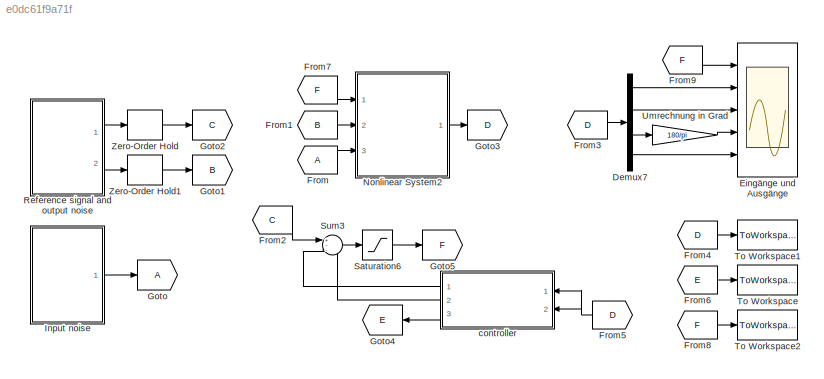
MODEL slx_e0dc61f9a71f
KIND model
CONFIG AbsTol = auto
CONFIG EnableMultiTasking = off
CONFIG FixedStep = auto
CONFIG InitFcn = clss1
CONFIG MaxStep = auto
CONFIG MinStep = auto
CONFIG RelTol = 1e-3
CONFIG SampleTimeConstraint = Unconstrained
CONFIG SolverName = VariableStepAuto
CONFIG StartTime = 0.0
CONFIG StopTime = (s-1)*h
BLOCK [Demux] Demux7
  Ports = [1, 4]
BLOCK [Scope] Eingänge und Ausgänge
  Floating = off
  NumInputPorts = 5
  Ports = [5]
  ScopeSpecificationString = Simulink.scopes.TimeScopeBlockCfg('CurrentConfiguration', extmgr.ConfigurationSet(extmgr.Configuration('Core','General UI',true),extmgr.Configuration('Core','Source UI',true),extmgr.Configuration('Sources','WiredSimulink',true,'DataLoggingVariableName','ScopeData5','DataLoggingLimitDataPoints',true,'DataLoggingSaveFormat','Array','DataLoggingDecimation','1','DataLoggingDecimateData',true),extmgr.C...<+5387ch>
BLOCK [From] From
BLOCK [From] From1
  GotoTag = B
BLOCK [From] From2
  GotoTag = C
BLOCK [From] From3
  GotoTag = D
BLOCK [From] From4
  GotoTag = D
BLOCK [From] From5
  GotoTag = D
  NameLocation = top
BLOCK [From] From6
  GotoTag = E
BLOCK [From] From7
  GotoTag = F
BLOCK [From] From8
  GotoTag = F
BLOCK [From] From9
  GotoTag = F
BLOCK [Goto] Goto
BLOCK [Goto] Goto1
  GotoTag = B
BLOCK [Goto] Goto2
  GotoTag = C
BLOCK [Goto] Goto3
  GotoTag = D
BLOCK [Goto] Goto4
  GotoTag = E
  NameLocation = top
BLOCK [Goto] Goto5
  GotoTag = F
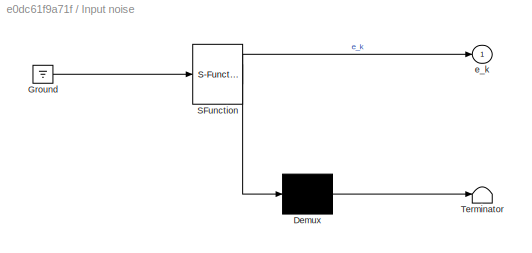
BLOCK [SubSystem] Input noise
  ErrorFcn = Stateflow.Translate.translate
  PermitHierarchicalResolution = ExplicitOnly
  Ports = [0, 1]
  RequestExecContextInheritance = off
  SFBlockType = MATLAB Function
  TreatAsAtomicUnit = on
BLOCK [Demux] Input noise/ Demux 
  Outputs = 1
  Ports = [1, 1]
BLOCK [Ground] Input noise/ Ground 
BLOCK [S-Function] Input noise/ SFunction 
  EnableBusSupport = on
  FunctionName = sf_sfun
  PortCounts = [1 2]
  Ports = [1, 2]
  SFcnIsStateOwnerBlock = off
  SFunctionDeploymentMode = off
  Tag = Stateflow S-Function 1
BLOCK [Terminator] Input noise/ Terminator 
BLOCK [Outport] Input noise/e_k
  VectorParamsAs1DForOutWhenUnconnected = off
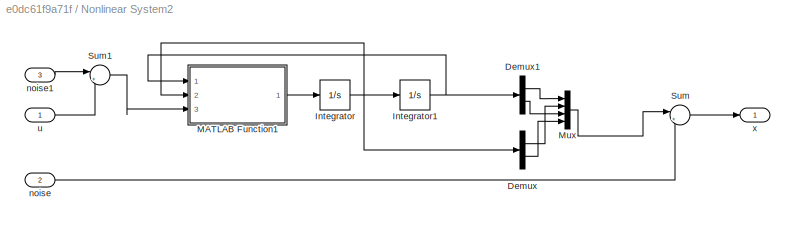
BLOCK [SubSystem] Nonlinear System2
  Ports = [3, 1]
  RequestExecContextInheritance = off
BLOCK [Demux] Nonlinear System2/Demux
  Outputs = 2
  Ports = [1, 2]
BLOCK [Demux] Nonlinear System2/Demux1
  Outputs = 2
  Ports = [1, 2]
BLOCK [Integrator] Nonlinear System2/Integrator
  InitialCondition = [0; 0]
  Ports = [1, 1]
BLOCK [Integrator] Nonlinear System2/Integrator1
  InitialCondition = [0;0.1 ]
  Ports = [1, 1]
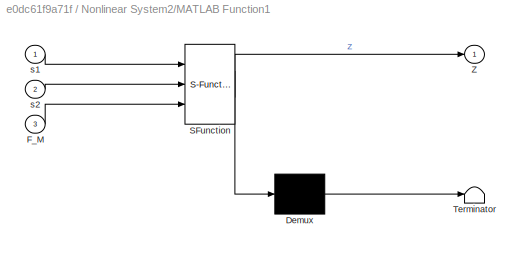
BLOCK [SubSystem] Nonlinear System2/MATLAB Function1
  ErrorFcn = Stateflow.Translate.translate
  PermitHierarchicalResolution = ExplicitOnly
  Ports = [3, 1]
  RequestExecContextInheritance = off
  SFBlockType = MATLAB Function
  TreatAsAtomicUnit = on
BLOCK [Demux] Nonlinear System2/MATLAB Function1/ Demux 
  Outputs = 1
  Ports = [1, 1]
BLOCK [S-Function] Nonlinear System2/MATLAB Function1/ SFunction 
  EnableBusSupport = on
  FunctionName = sf_sfun
  PortCounts = [3 2]
  Ports = [3, 2]
  SFcnIsStateOwnerBlock = off
  SFunctionDeploymentMode = off
  Tag = Stateflow S-Function 4
BLOCK [Terminator] Nonlinear System2/MATLAB Function1/ Terminator 
BLOCK [Inport] Nonlinear System2/MATLAB Function1/F_M
  Port = 3
BLOCK [Outport] Nonlinear System2/MATLAB Function1/Z
BLOCK [Inport] Nonlinear System2/MATLAB Function1/s1
BLOCK [Inport] Nonlinear System2/MATLAB Function1/s2
  Port = 2
BLOCK [Mux] Nonlinear System2/Mux
  DisplayOption = bar
  Ports = [4, 1]
BLOCK [Sum] Nonlinear System2/Sum
  Inputs = |++
  Ports = [2, 1]
BLOCK [Sum] Nonlinear System2/Sum1
  Inputs = |++
  Ports = [2, 1]
BLOCK [Inport] Nonlinear System2/noise
  Port = 2
BLOCK [Inport] Nonlinear System2/noise1
  Port = 3
BLOCK [Inport] Nonlinear System2/u
BLOCK [Outport] Nonlinear System2/x
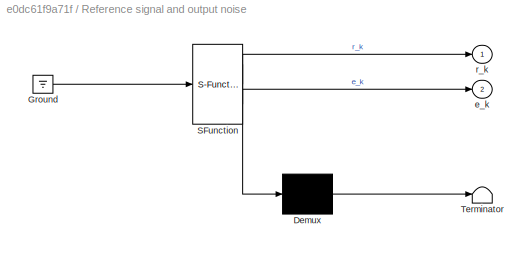
BLOCK [SubSystem] Reference signal and output noise
  ErrorFcn = Stateflow.Translate.translate
  PermitHierarchicalResolution = ExplicitOnly
  Ports = [0, 2]
  RequestExecContextInheritance = off
  SFBlockType = MATLAB Function
  TreatAsAtomicUnit = on
BLOCK [Demux] Reference signal and output noise/ Demux 
  Outputs = 1
  Ports = [1, 1]
BLOCK [Ground] Reference signal and output noise/ Ground 
BLOCK [S-Function] Reference signal and output noise/ SFunction 
  EnableBusSupport = on
  FunctionName = sf_sfun
  PortCounts = [1 3]
  Ports = [1, 3]
  SFcnIsStateOwnerBlock = off
  SFunctionDeploymentMode = off
  Tag = Stateflow S-Function 2
BLOCK [Terminator] Reference signal and output noise/ Terminator 
BLOCK [Outport] Reference signal and output noise/e_k
  Port = 2
  VectorParamsAs1DForOutWhenUnconnected = off
BLOCK [Outport] Reference signal and output noise/r_k
  VectorParamsAs1DForOutWhenUnconnected = off
BLOCK [Saturate] Saturation6
  LowerLimit = -10
  UpperLimit = 10
BLOCK [Sum] Sum3
  Inputs = +--
  Ports = [3, 1]
BLOCK [ToWorkspace] To Workspace
  FixptAsFi = on
  MaxDataPoints = inf
  Ports = [1]
  SampleTime = -1
  VariableName = x_k
BLOCK [ToWorkspace] To Workspace1
  FixptAsFi = on
  MaxDataPoints = inf
  NameLocation = top
  Ports = [1]
  SampleTime = -1
  Save2DSignal = 2-D array (concatenate along first dimension)
  VariableName = y_k
BLOCK [ToWorkspace] To Workspace2
  FixptAsFi = on
  MaxDataPoints = inf
  NameLocation = top
  Ports = [1]
  SampleTime = -1
  Save2DSignal = 2-D array (concatenate along first dimension)
  VariableName = u_k
BLOCK [Gain] Umrechnung in Grad
  Gain = 180/pi
BLOCK [ZeroOrderHold] Zero-Order Hold
  SampleTime = h
BLOCK [ZeroOrderHold] Zero-Order Hold1
  SampleTime = h
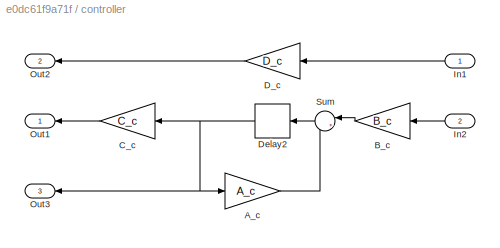
BLOCK [SubSystem] controller
  NameLocation = top
  Ports = [2, 3]
  RequestExecContextInheritance = off
BLOCK [Gain] controller/A_c
  Gain = A_c
  Multiplication = Matrix(K*u)
BLOCK [Gain] controller/B_c
  Gain = B_c
  Multiplication = Matrix(K*u)
BLOCK [Gain] controller/C_c
  Gain = C_c
  Multiplication = Matrix(K*u)
BLOCK [Gain] controller/D_c
  Gain = D_c
  Multiplication = Matrix(K*u)
BLOCK [Delay] controller/Delay2
  DelayLength = 1
  InitialCondition = 0
  InputPortMap = u0
  Ports = [1, 1]
BLOCK [Inport] controller/In1
BLOCK [Inport] controller/In2
  Port = 2
BLOCK [Outport] controller/Out1
  NameLocation = top
BLOCK [Outport] controller/Out2
  NameLocation = top
  Port = 2
BLOCK [Outport] controller/Out3
  NameLocation = top
  Port = 3
BLOCK [Sum] controller/Sum
  Inputs = |++
  Ports = [2, 1]
LINE Demux7:1 -> Eingänge und Ausgänge:2
LINE Demux7:2 -> Eingänge und Ausgänge:3
LINE Demux7:3 -> Umrechnung in Grad:1
LINE Demux7:4 -> Eingänge und Ausgänge:5
LINE From1:1 -> Nonlinear System2:2
LINE From2:1 -> Sum3:1
LINE From3:1 -> Demux7:1
LINE From4:1 -> To Workspace1:1
NET From5:1 -> controller:1, controller:2
LINE From6:1 -> To Workspace:1
LINE From7:1 -> Nonlinear System2:1
LINE From8:1 -> To Workspace2:1
LINE From9:1 -> Eingänge und Ausgänge:1
LINE From:1 -> Nonlinear System2:3
LINE Input noise:1 -> Goto:1
LINE Nonlinear System2/Demux1:1 -> Nonlinear System2/Mux:1
LINE Nonlinear System2/Demux1:2 -> Nonlinear System2/Mux:3
LINE Nonlinear System2/Demux:1 -> Nonlinear System2/Mux:2
LINE Nonlinear System2/Demux:2 -> Nonlinear System2/Mux:4
NET Nonlinear System2/Integrator1:1 -> Nonlinear System2/Demux1:1, Nonlinear System2/MATLAB Function1:1
NET Nonlinear System2/Integrator:1 -> Nonlinear System2/Demux:1, Nonlinear System2/Integrator1:1, Nonlinear System2/MATLAB Function1:2
LINE Nonlinear System2/MATLAB Function1:1 -> Nonlinear System2/Integrator:1
LINE Nonlinear System2/Mux:1 -> Nonlinear System2/Sum:1
LINE Nonlinear System2/Sum1:1 -> Nonlinear System2/MATLAB Function1:3
LINE Nonlinear System2/Sum:1 -> Nonlinear System2/x:1
LINE Nonlinear System2/noise1:1 -> Nonlinear System2/Sum1:1
LINE Nonlinear System2/noise:1 -> Nonlinear System2/Sum:2
LINE Nonlinear System2/u:1 -> Nonlinear System2/Sum1:2
LINE Nonlinear System2:1 -> Goto3:1
LINE Reference signal and output noise:1 -> Zero-Order Hold:1
LINE Reference signal and output noise:2 -> Zero-Order Hold1:1
LINE Saturation6:1 -> Goto5:1
LINE Sum3:1 -> Saturation6:1
LINE Umrechnung in Grad:1 -> Eingänge und Ausgänge:4
LINE Zero-Order Hold1:1 -> Goto1:1
LINE Zero-Order Hold:1 -> Goto2:1
LINE controller/A_c:1 -> controller/Sum:2
LINE controller/B_c:1 -> controller/Sum:1
LINE controller/C_c:1 -> controller/Out1:1
LINE controller/D_c:1 -> controller/Out2:1
NET controller/Delay2:1 -> controller/A_c:1, controller/C_c:1, controller/Out3:1
LINE controller/In1:1 -> controller/D_c:1
LINE controller/In2:1 -> controller/B_c:1
LINE controller/Sum:1 -> controller/Delay2:1
LINE controller:1 -> Sum3:2
LINE controller:2 -> Sum3:3
LINE controller:3 -> Goto4:1
note: NET lines group one-source signal fan-out (src -> all destinations, sorted); 1:1 wires keep LINE
CHART Input noise states=1 transitions=1
  STATE_LABEL 'eML_blk_kernel()'
  STATE_LABEL 'SCRIPT:\nfunction e_k  = fcn\ne_k = 1/10*randn(1,1);\ne_k(1) = e_k(1)/10;\n'
CHART Reference signal and output noise states=1 transitions=1
  STATE_LABEL 'eML_blk_kernel()'
  STATE_LABEL 'SCRIPT:\nfunction [r_k,e_k] = fcn\nr_k = 1*randn(1,1);\ne_k = 1/10*randn(4,1);\ne_k(1) = e_k(1)/10;\ne_k(2) = e_k(2)/10;\ne_k(3) = e_k(3)/180*pi;\ne_k(4) = e_k(4)/180*pi;'
CHART Nonlinear System2/MATLAB Function1 states=1 transitions=1
  STATE_LABEL 'eML_blk_kernel()'
  STATE_LABEL 'SCRIPT:\n%% System dynamic des Pendels\nfunction Z = pendel(s1,s2,F_M)\n%T_sample = 0.01;\nx = s1(1);\nx_d = s2(1);\nphi = s1(2);\nphi_d = s2(2);\n\n\n% Systemparameters\nm_p = 0.329;\nm_w = 3.2;\nl_sp = 0.488;\nf_w = 6.2;\nf_p = 0.009;\ng = 9.81;\nJ_A = 0.0743;\n\n% Dynamic des Wagens\nx_dd = (m_w + m_p) \\ F_M - f_w / (m_w + m_p) * x_d;\n\n% x_d = x_d + x_dd * T_sample;\n% x = x + x_d *T_sample;\n\n% Dynamic des Pendels\n...<+258ch>'
CHART  states=0 transitions=0
CHART  states=0 transitions=0
CHART  states=0 transitions=0
